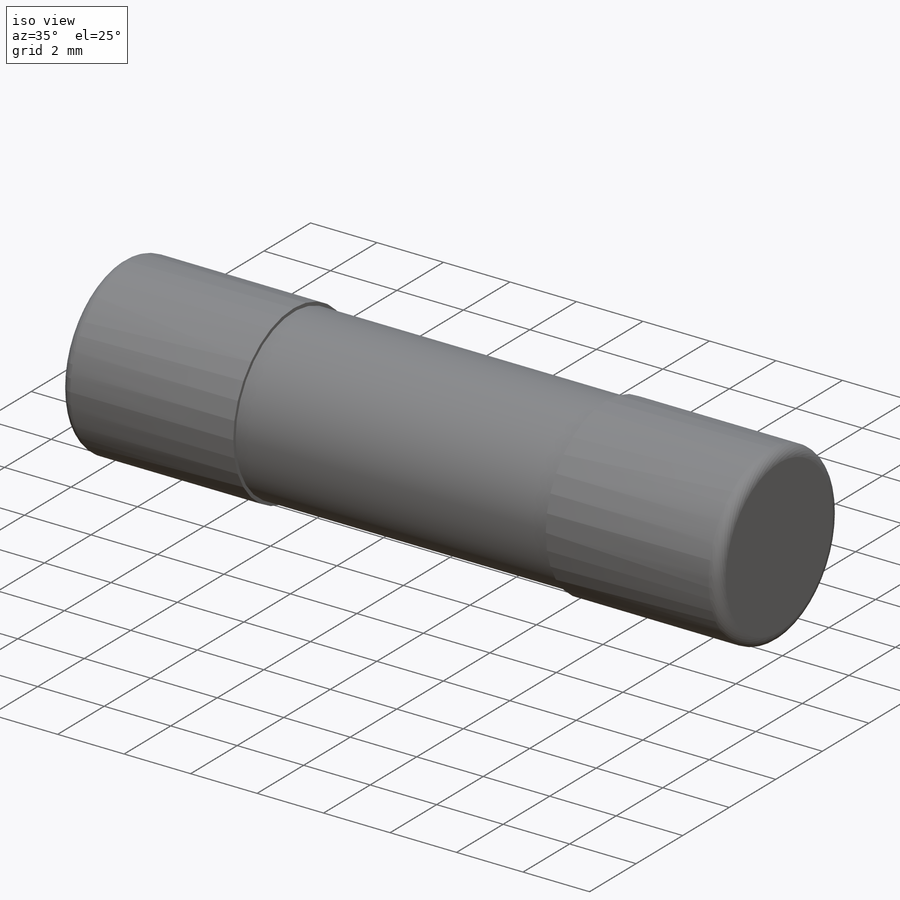
[diagram: iso view]
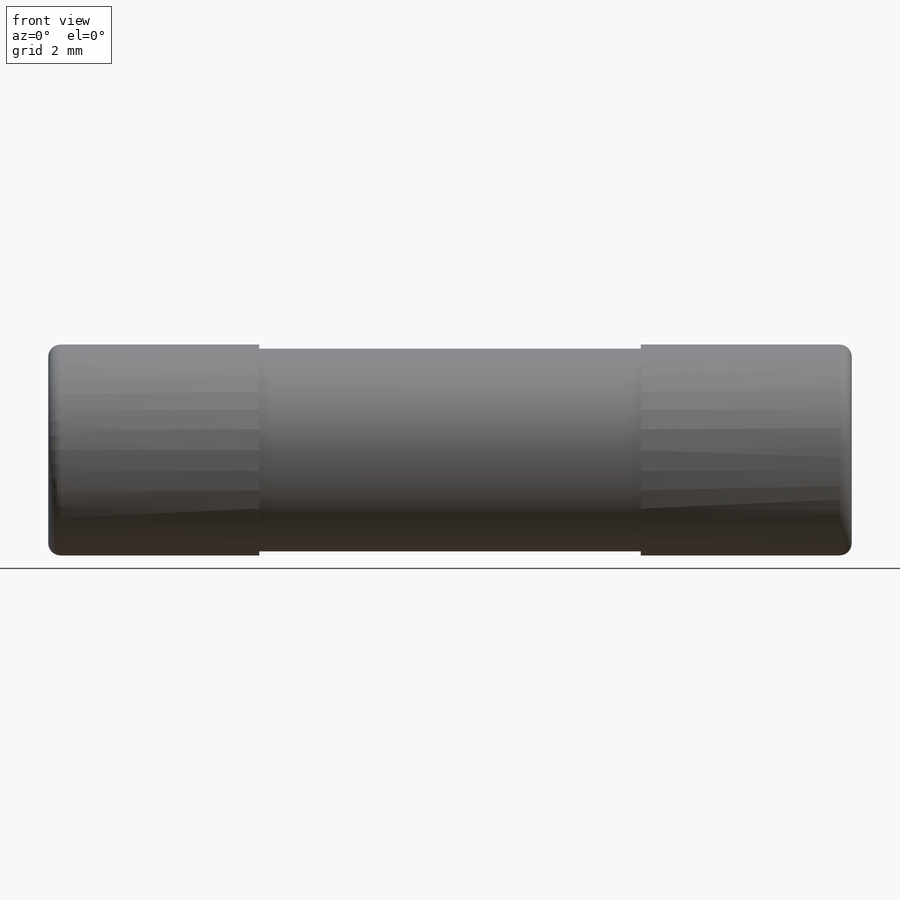
[diagram: front view]
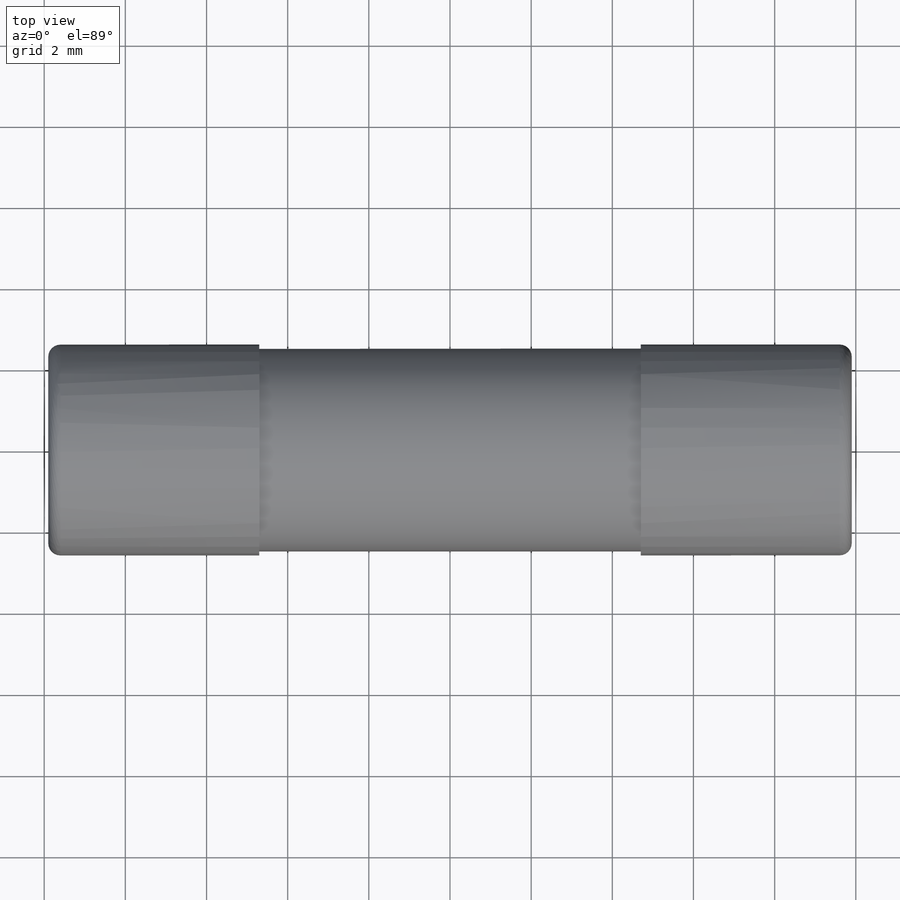
[diagram: top view]
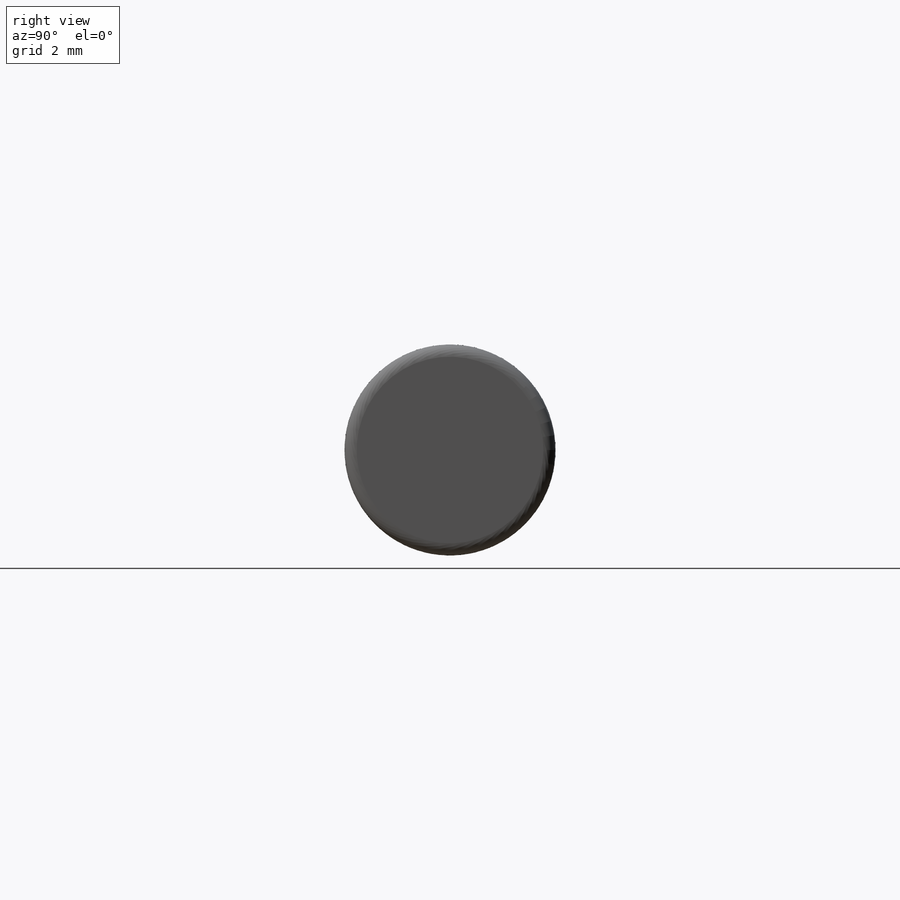
[diagram: right view]
SOLIDWORKS PART (.sldprt)
format: sldprt  version: not decoded by parser v0  size: 193,536 bytes
history: native  units: mm
features: plane x4, sketch x2, extrude x2, material x1, fillet x1, mirror x1 (+8 scaffold rows collapsed)
feature tree (19):
  scaffold x8  (default folders/planes/origin — collapsed)
  material  "Matériau <non spécifié>"
  plane  "Plan de face"
  plane  "Plan de dessus"
  plane  "Plan de droite"
  sketch  "Esquisse1"  dims[D1=2.6mm]
  extrude  "Boss.-Extru.1"  Depth=9.4mm
  plane  "Plan1"  Offset=0mm
  sketch  "Esquisse2"  dims[D1=~2.561174mm]
  extrude  "Boss.-Extru.2"  Depth=5.2mm
  fillet  "Congé1"  Radius=0.3mm
  mirror  "Symétrie1"
decode coverage: 5 of 6 modeling features carry decoded parameters
note: ~ marks probable driven/reference dimensions
note: suppression state not decoded; provenance and decode notes live in map.json
